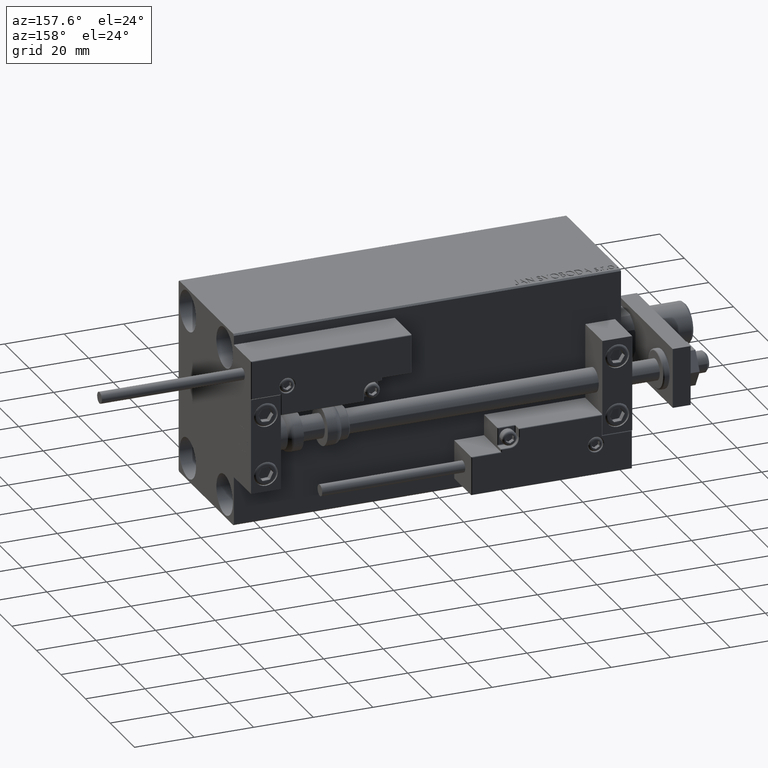
[diagram: clean part render]
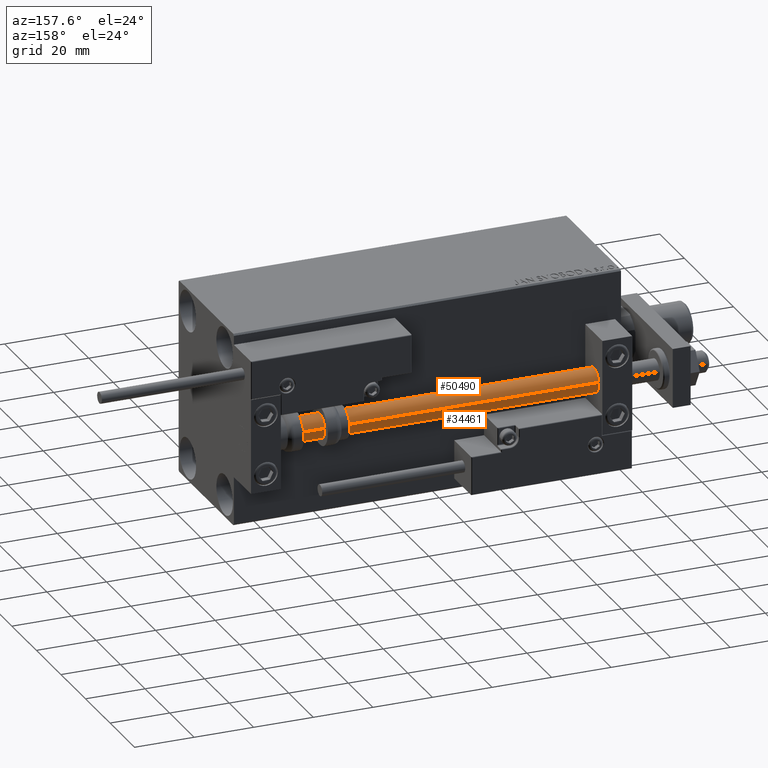
[diagram: same view with one multi-face feature highlighted, each face labeled with its STEP entity id]
A machine part, auxiliary view. The highlighted faces form ONE feature: a constant-radius fillet chain: 2 tangent blend faces with common blend radius 4 mm. The faces share edges in the B-rep.
Their STEP definitions:
[1] entity #34461 (Cylinder):
#1696 = FACE_OUTER_BOUND ( 'NONE', #22780, .T. ) ;
#3860 = CARTESIAN_POINT ( 'NONE',  ( -4.000000000000000000, 0.000000000000000000, 130.0000000000000000 ) ) ;
#3873 = CARTESIAN_POINT ( 'NONE',  ( 4.000000000000000000, 4.898587196589412829E-16, 130.0000000000000000 ) ) ;
#5008 = CARTESIAN_POINT ( 'NONE',  ( 0.000000000000000000, 0.000000000000000000, 2.000000000000029310 ) ) ;
#8596 = EDGE_CURVE ( 'NONE', #19261, #35960, #23744, .T. ) ;
#8650 = CYLINDRICAL_SURFACE ( 'NONE', #27037, 4.000000000000000000 ) ;
#10661 = VECTOR ( 'NONE', #45660, 1000.000000000000000 ) ;
#11827 = ORIENTED_EDGE ( 'NONE', *, *, #8596, .T. ) ;
#12385 = CARTESIAN_POINT ( 'NONE',  ( 0.000000000000000000, 0.000000000000000000, 130.0000000000000000 ) ) ;
#12734 = DIRECTION ( 'NONE',  ( -0.000000000000000000, -0.000000000000000000, 1.000000000000000000 ) ) ;
#14484 = ORIENTED_EDGE ( 'NONE', *, *, #35253, .F. ) ;
#15995 = DIRECTION ( 'NONE',  ( 0.000000000000000000, 0.000000000000000000, 1.000000000000000000 ) ) ;
#16363 = DIRECTION ( 'NONE',  ( -1.000000000000000000, 0.000000000000000000, 0.000000000000000000 ) ) ;
#17130 = EDGE_CURVE ( 'NONE', #35960, #43181, #39459, .T. ) ;
#18130 = EDGE_CURVE ( 'NONE', #19261, #39616, #22701, .T. ) ;
#19261 = VERTEX_POINT ( 'NONE', #3860 ) ;
#20016 = VECTOR ( 'NONE', #42482, 1000.000000000000000 ) ;
#20937 = DIRECTION ( 'NONE',  ( 1.000000000000000000, 0.000000000000000000, 0.000000000000000000 ) ) ;
#22701 = CIRCLE ( 'NONE', #42356, 4.000000000000000000 ) ;
#22780 = EDGE_LOOP ( 'NONE', ( #14484, #31767, #11827, #37357 ) ) ;
#23499 = CARTESIAN_POINT ( 'NONE',  ( -4.000000000000000000, 0.000000000000000000, 130.0000000000000000 ) ) ;
#23744 = LINE ( 'NONE', #23499, #20016 ) ;
#27037 = AXIS2_PLACEMENT_3D ( 'NONE', #32531, #47912, #16363 ) ;
#30027 = LINE ( 'NONE', #30266, #10661 ) ;
#30266 = CARTESIAN_POINT ( 'NONE',  ( 4.000000000000000000, 4.898587196589412829E-16, 130.0000000000000000 ) ) ;
#31767 = ORIENTED_EDGE ( 'NONE', *, *, #18130, .F. ) ;
#32492 = CARTESIAN_POINT ( 'NONE',  ( 4.000000000000000000, 4.898587196589412829E-16, 2.000000000000029310 ) ) ;
#32531 = CARTESIAN_POINT ( 'NONE',  ( 0.000000000000000000, 0.000000000000000000, 130.0000000000000000 ) ) ;
#34461 = ADVANCED_FACE ( 'NONE', ( #1696 ), #8650, .T. ) ;
#35253 = EDGE_CURVE ( 'NONE', #39616, #43181, #30027, .T. ) ;
#35960 = VERTEX_POINT ( 'NONE', #39343 ) ;
#37357 = ORIENTED_EDGE ( 'NONE', *, *, #17130, .T. ) ;
#39343 = CARTESIAN_POINT ( 'NONE',  ( -4.000000000000000000, 0.000000000000000000, 2.000000000000029310 ) ) ;
#39459 = CIRCLE ( 'NONE', #42756, 4.000000000000000000 ) ;
#39616 = VERTEX_POINT ( 'NONE', #3873 ) ;
#42356 = AXIS2_PLACEMENT_3D ( 'NONE', #12385, #15995, #47792 ) ;
#42482 = DIRECTION ( 'NONE',  ( -0.000000000000000000, -0.000000000000000000, -1.000000000000000000 ) ) ;
#42756 = AXIS2_PLACEMENT_3D ( 'NONE', #5008, #12734, #20937 ) ;
#43181 = VERTEX_POINT ( 'NONE', #32492 ) ;
#45660 = DIRECTION ( 'NONE',  ( -0.000000000000000000, -0.000000000000000000, -1.000000000000000000 ) ) ;
#47792 = DIRECTION ( 'NONE',  ( 1.000000000000000000, 0.000000000000000000, 0.000000000000000000 ) ) ;
#47912 = DIRECTION ( 'NONE',  ( -0.000000000000000000, -0.000000000000000000, -1.000000000000000000 ) ) ;
[2] entity #50490 (Cylinder):
#3755 = CIRCLE ( 'NONE', #32475, 4.000000000000000000 ) ;
#3860 = CARTESIAN_POINT ( 'NONE',  ( -4.000000000000000000, 0.000000000000000000, 130.0000000000000000 ) ) ;
#3873 = CARTESIAN_POINT ( 'NONE',  ( 4.000000000000000000, 4.898587196589412829E-16, 130.0000000000000000 ) ) ;
#6852 = CARTESIAN_POINT ( 'NONE',  ( 0.000000000000000000, 0.000000000000000000, 2.000000000000029310 ) ) ;
#8596 = EDGE_CURVE ( 'NONE', #19261, #35960, #23744, .T. ) ;
#9807 = EDGE_LOOP ( 'NONE', ( #36282, #34785, #30423, #47251 ) ) ;
#10661 = VECTOR ( 'NONE', #45660, 1000.000000000000000 ) ;
#11088 = DIRECTION ( 'NONE',  ( 0.000000000000000000, 0.000000000000000000, 1.000000000000000000 ) ) ;
#11233 = DIRECTION ( 'NONE',  ( 1.000000000000000000, 0.000000000000000000, 0.000000000000000000 ) ) ;
#13013 = CYLINDRICAL_SURFACE ( 'NONE', #15676, 4.000000000000000000 ) ;
#14771 = AXIS2_PLACEMENT_3D ( 'NONE', #18297, #11088, #14938 ) ;
#14938 = DIRECTION ( 'NONE',  ( 1.000000000000000000, 0.000000000000000000, 0.000000000000000000 ) ) ;
#15676 = AXIS2_PLACEMENT_3D ( 'NONE', #29197, #40215, #28432 ) ;
#18297 = CARTESIAN_POINT ( 'NONE',  ( 0.000000000000000000, 0.000000000000000000, 130.0000000000000000 ) ) ;
#19261 = VERTEX_POINT ( 'NONE', #3860 ) ;
#20016 = VECTOR ( 'NONE', #42482, 1000.000000000000000 ) ;
#21900 = EDGE_CURVE ( 'NONE', #43181, #35960, #3755, .T. ) ;
#23499 = CARTESIAN_POINT ( 'NONE',  ( -4.000000000000000000, 0.000000000000000000, 130.0000000000000000 ) ) ;
#23744 = LINE ( 'NONE', #23499, #20016 ) ;
#27135 = DIRECTION ( 'NONE',  ( -0.000000000000000000, -0.000000000000000000, 1.000000000000000000 ) ) ;
#28432 = DIRECTION ( 'NONE',  ( -1.000000000000000000, 0.000000000000000000, 0.000000000000000000 ) ) ;
#29197 = CARTESIAN_POINT ( 'NONE',  ( 0.000000000000000000, 0.000000000000000000, 130.0000000000000000 ) ) ;
#30027 = LINE ( 'NONE', #30266, #10661 ) ;
#30266 = CARTESIAN_POINT ( 'NONE',  ( 4.000000000000000000, 4.898587196589412829E-16, 130.0000000000000000 ) ) ;
#30423 = ORIENTED_EDGE ( 'NONE', *, *, #21900, .T. ) ;
#31506 = EDGE_CURVE ( 'NONE', #39616, #19261, #45893, .T. ) ;
#32475 = AXIS2_PLACEMENT_3D ( 'NONE', #6852, #27135, #11233 ) ;
#32492 = CARTESIAN_POINT ( 'NONE',  ( 4.000000000000000000, 4.898587196589412829E-16, 2.000000000000029310 ) ) ;
#34785 = ORIENTED_EDGE ( 'NONE', *, *, #35253, .T. ) ;
#35253 = EDGE_CURVE ( 'NONE', #39616, #43181, #30027, .T. ) ;
#35960 = VERTEX_POINT ( 'NONE', #39343 ) ;
#36282 = ORIENTED_EDGE ( 'NONE', *, *, #31506, .F. ) ;
#39343 = CARTESIAN_POINT ( 'NONE',  ( -4.000000000000000000, 0.000000000000000000, 2.000000000000029310 ) ) ;
#39616 = VERTEX_POINT ( 'NONE', #3873 ) ;
#40215 = DIRECTION ( 'NONE',  ( -0.000000000000000000, -0.000000000000000000, -1.000000000000000000 ) ) ;
#42482 = DIRECTION ( 'NONE',  ( -0.000000000000000000, -0.000000000000000000, -1.000000000000000000 ) ) ;
#43181 = VERTEX_POINT ( 'NONE', #32492 ) ;
#45660 = DIRECTION ( 'NONE',  ( -0.000000000000000000, -0.000000000000000000, -1.000000000000000000 ) ) ;
#45893 = CIRCLE ( 'NONE', #14771, 4.000000000000000000 ) ;
#47251 = ORIENTED_EDGE ( 'NONE', *, *, #8596, .F. ) ;
#48412 = FACE_OUTER_BOUND ( 'NONE', #9807, .T. ) ;
#50490 = ADVANCED_FACE ( 'NONE', ( #48412 ), #13013, .T. ) ;